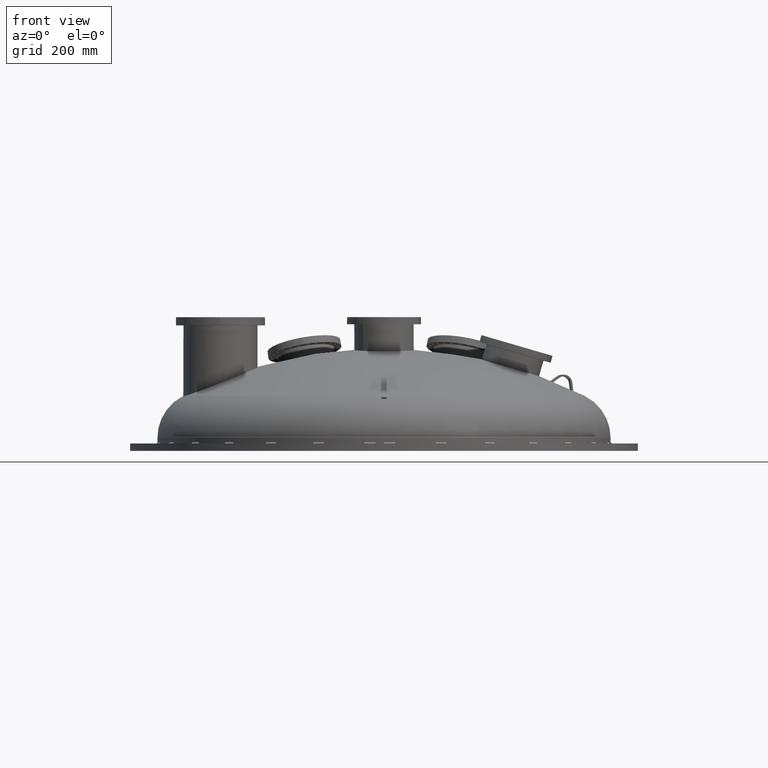
[diagram: clean part render]
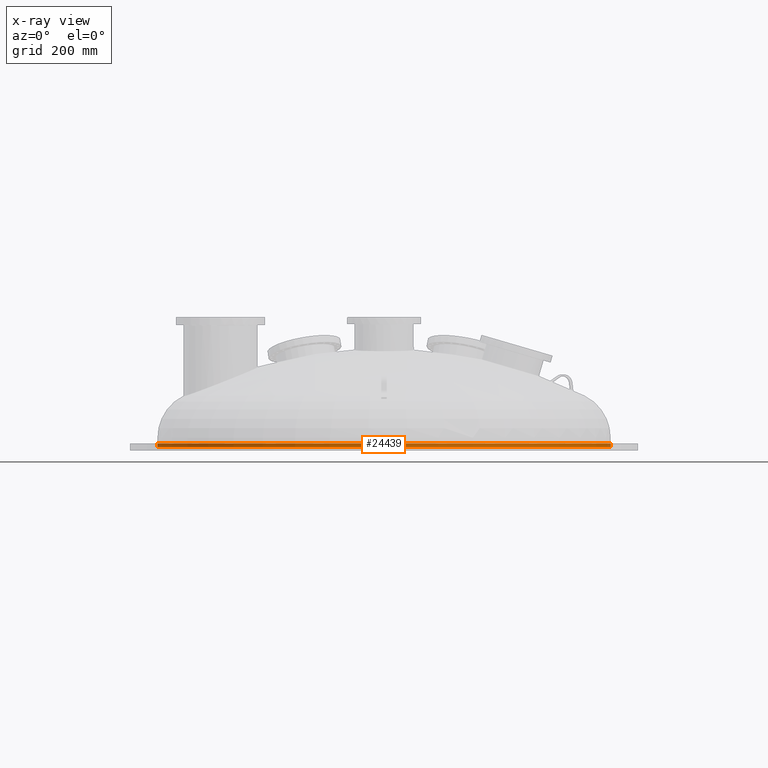
[diagram: x-ray — body ghosted, one internal face saturated and labeled with its STEP entity id]
A machine part, front view, then the same camera in x-ray: the body is ghosted and one INTERNAL B-rep face — a face not visible from any outside direction — is saturated and labeled: STEP entity #24439.
In plain terms, the highlighted cylindrical surface (bore or boss wall) has radius 775.462 mm, axis along (-0, 0, -1).
Its self-contained STEP definition (entity closure, byte-faithful):
#638 = CARTESIAN_POINT ( 'NONE',  ( 0.0000000000000000000, 30.53000000000000114, 1.000000000000000222 ) ) ;
#1288 = EDGE_CURVE ( 'NONE', #4579, #4579, #3915, .T. ) ;
#1549 = AXIS2_PLACEMENT_3D ( 'NONE', #17122, #4110, #11604 ) ;
#3915 = CIRCLE ( 'NONE', #1549, 30.53000000000000114 ) ;
#4110 = DIRECTION ( 'NONE',  ( -0.0000000000000000000, 3.319070805315438694E-17, -1.000000000000000000 ) ) ;
#4304 = AXIS2_PLACEMENT_3D ( 'NONE', #15887, #21618, #14284 ) ;
#4579 = VERTEX_POINT ( 'NONE', #23698 ) ;
#7893 = CIRCLE ( 'NONE', #11078, 30.53000000000000114 ) ;
#8263 = CYLINDRICAL_SURFACE ( 'NONE', #4304, 30.53000000000000114 ) ;
#10122 = FACE_OUTER_BOUND ( 'NONE', #14139, .T. ) ;
#10256 = EDGE_LOOP ( 'NONE', ( #17622 ) ) ;
#11078 = AXIS2_PLACEMENT_3D ( 'NONE', #15270, #13393, #17253 ) ;
#11604 = DIRECTION ( 'NONE',  ( 0.0000000000000000000, 1.000000000000000000, 3.355528980098586958E-17 ) ) ;
#12266 = FACE_OUTER_BOUND ( 'NONE', #10256, .T. ) ;
#13393 = DIRECTION ( 'NONE',  ( -0.0000000000000000000, 3.319070805315438694E-17, -1.000000000000000000 ) ) ;
#14139 = EDGE_LOOP ( 'NONE', ( #18741 ) ) ;
#14284 = DIRECTION ( 'NONE',  ( 0.0000000000000000000, 1.000000000000000000, 3.319070805315438694E-17 ) ) ;
#15270 = CARTESIAN_POINT ( 'NONE',  ( 0.0000000000000000000, -7.782769398394446248E-17, 0.9999999999999992228 ) ) ;
#15887 = CARTESIAN_POINT ( 'NONE',  ( 0.0000000000000000000, -4.463698593079012484E-17, 0.0000000000000000000 ) ) ;
#17122 = CARTESIAN_POINT ( 'NONE',  ( 0.0000000000000000000, -6.123233995736715499E-17, 0.4999999999999952260 ) ) ;
#17253 = DIRECTION ( 'NONE',  ( 0.0000000000000000000, 1.000000000000000000, 3.131827048092014535E-17 ) ) ;
#17622 = ORIENTED_EDGE ( 'NONE', *, *, #21206, .F. ) ;
#17731 = VERTEX_POINT ( 'NONE', #638 ) ;
#18741 = ORIENTED_EDGE ( 'NONE', *, *, #1288, .T. ) ;
#21206 = EDGE_CURVE ( 'NONE', #17731, #17731, #7893, .T. ) ;
#21618 = DIRECTION ( 'NONE',  ( -0.0000000000000000000, 3.319070805315438694E-17, -1.000000000000000000 ) ) ;
#23698 = CARTESIAN_POINT ( 'NONE',  ( 0.0000000000000000000, 30.53000000000000114, 0.4999999999999962252 ) ) ;
#24439 = ADVANCED_FACE ( 'NONE', ( #10122, #12266 ), #8263, .F. ) ;